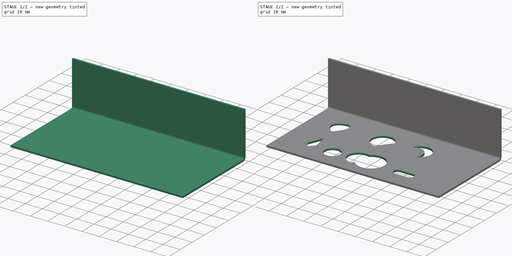
[diagram: build sequence overview — one tinted view per stage of 2, left to right]
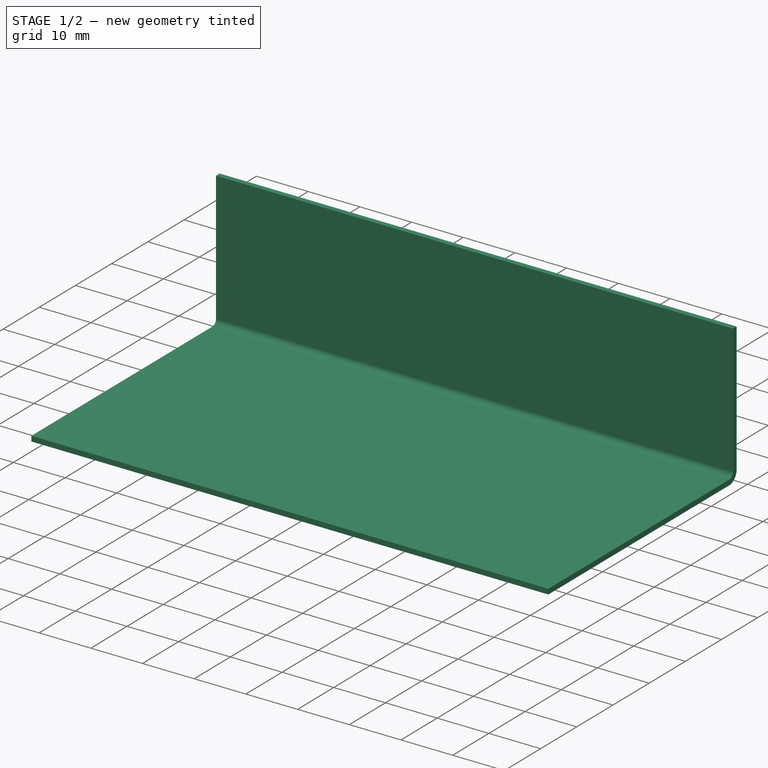
[diagram: stage 1 of 2 — iso view after this stage's code; geometry added in this stage tinted green]
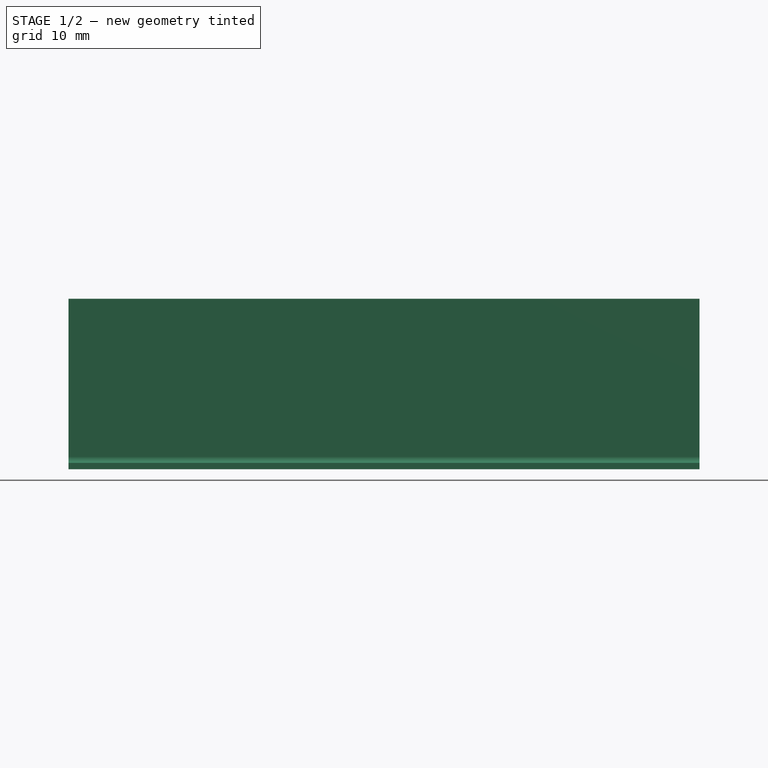
[diagram: stage 1 of 2 — front view after this stage's code; geometry added in this stage tinted green]
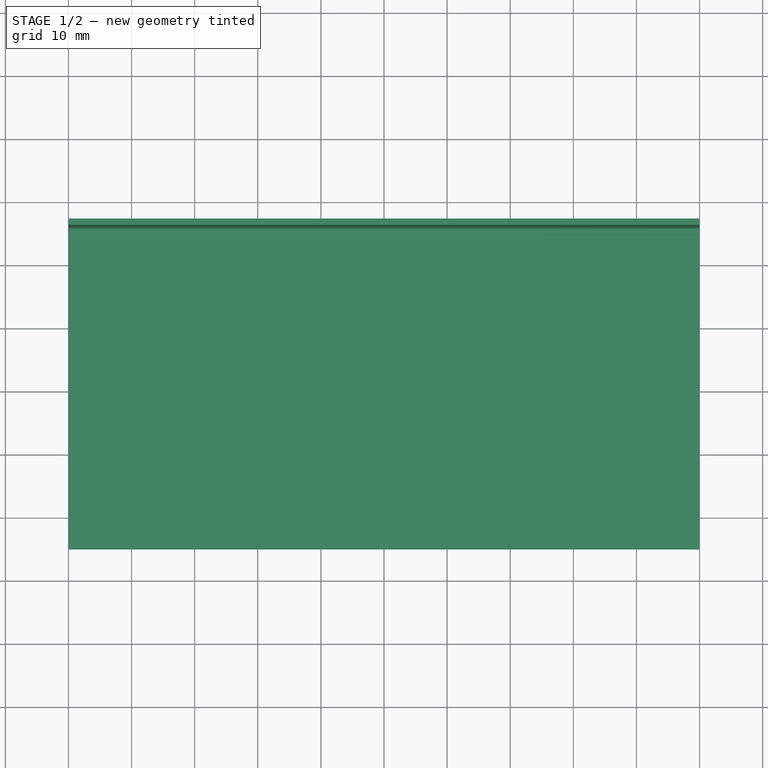
[diagram: stage 1 of 2 — top view after this stage's code; geometry added in this stage tinted green]
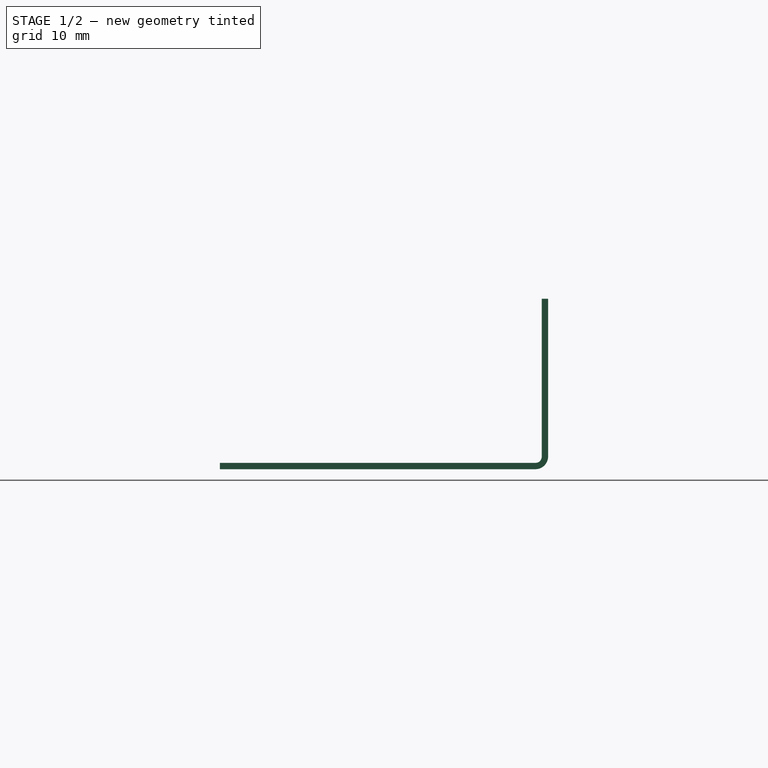
[diagram: stage 1 of 2 — right view after this stage's code; geometry added in this stage tinted green]
FCSTD DOCUMENT  (FreeCAD 0.19R24276 (Git))
Label: SheetMeta_2_48_Arc_Bug
License: All rights reserved
LicenseURL: http://en.wikipedia.org/wiki/All_rights_reserved
objects: Sketcher::SketchObject×2, PartDesign::Pad×1, PartDesign::FeaturePython×1, PartDesign::Pocket×1, PartDesign::Body×1
note: 8 computed .brp shape members not serialized (recipe doc carries the construction recipe); baked Part::Feature solids carry a one-line shape summary decoded from their .brp

FEATURE [Sketcher::SketchObject] Sketch
  FullyConstrained = true
  MapMode = 5
  Support = -> [XY_Plane]
  sketch-geometry (4):
    g0: LineSegment StartX=-50 StartY=25 StartZ=0 EndX=50 EndY=25 EndZ=0
    g1: LineSegment StartX=50 StartY=25 StartZ=0 EndX=50 EndY=-25 EndZ=0
    g2: LineSegment StartX=50 StartY=-25 StartZ=0 EndX=-50 EndY=-25 EndZ=0
    g3: LineSegment StartX=-50 StartY=-25 StartZ=0 EndX=-50 EndY=25 EndZ=0
  constraints (11):
    c: Coincident(g0,g1)
    c: Coincident(g1,g2)
    c: Coincident(g2,g3)
    c: Coincident(g3,g0)
    c: Horizontal(g0)
    c: Horizontal(g2)
    c: Vertical(g1)
    c: Vertical(g3)
    c: Symmetric(g2,g0,g-1)
    c: DistanceY(g3,g3) = 50
    c: DistanceX(g0,g0) = 100
FEATURE [PartDesign::Pad] Pad
  Direction = (1,1,1)
  Length = 1
  Length2 = 100
  Profile = -> Sketch
  Type = 0
FEATURE [Sketcher::SketchObject] Sketch001  label="Sketch001_TEST"
  FullyConstrained = false
  MapMode = 5
  Placement = pos=(0,0,0) rot=(1,0,0;3.14159rad)
  sketch-geometry (29):
    g0: ArcOfCircle CenterX=18.1618 CenterY=13.7873 CenterZ=0 NormalX=0 NormalY=0 NormalZ=1 AngleXU=0 Radius=2.13417 StartAngle=1.5708 EndAngle=4.71239
    g1: ArcOfCircle CenterX=25.553 CenterY=13.7873 CenterZ=0 NormalX=0 NormalY=0 NormalZ=1 AngleXU=0 Radius=2.13417 StartAngle=4.71239 EndAngle=7.85398
    g2: LineSegment StartX=18.1618 StartY=11.6532 StartZ=0 EndX=25.553 EndY=11.6532 EndZ=0
    g3: LineSegment StartX=18.1618 StartY=15.9215 StartZ=0 EndX=25.553 EndY=15.9215 EndZ=0
    g4: LineSegment StartX=-33.5771 StartY=14.6832 StartZ=0 EndX=-35.7049 EndY=11.3236 EndZ=0
    g5: LineSegment StartX=-35.7049 StartY=11.3236 StartZ=0 EndX=-32.1212 EndY=2.86841 EndZ=0
    g6: LineSegment StartX=-32.1212 StartY=2.86841 StartZ=0 EndX=-30.5534 EndY=11.5475 EndZ=0
    g7: LineSegment StartX=-30.5534 StartY=11.5475 StartZ=0 EndX=-33.5771 EndY=14.6832 EndZ=0
    g8-g14: Circle x7 (B-spline internal-alignment scaffolding for g15; pole/knot coordinates omitted)
    g15: BSplineCurve PolesCount=7 KnotsCount=5 Degree=3 IsPeriodic=0
    g16-g20: GeomPoint x5 (B-spline internal-alignment scaffolding for g15; pole/knot coordinates omitted)
    g21: ArcOfCircle CenterX=14.0365 CenterY=-11.1347 CenterZ=0 NormalX=0 NormalY=0 NormalZ=1 AngleXU=0 Radius=6 StartAngle=3.39983 EndAngle=7.60737
    g22: Circle CenterX=-19.8584 CenterY=13.3954 CenterZ=0 NormalX=0 NormalY=0 NormalZ=1 AngleXU=0 Radius=4.40294
    g23: ArcOfCircle CenterX=-5.96146 CenterY=11.7155 CenterZ=0 NormalX=0 NormalY=0 NormalZ=1 AngleXU=0 Radius=6.01225 StartAngle=1.5708 EndAngle=5.087
    g24: ArcOfCircle CenterX=1.36344 CenterY=11.7155 CenterZ=0 NormalX=0 NormalY=0 NormalZ=1 AngleXU=0 Radius=7.58768 StartAngle=3.97084 EndAngle=8.8151
    g25: LineSegment StartX=-5.96146 StartY=17.7278 StartZ=0 EndX=-4.85717 EndY=16.0603 EndZ=0
    g26: ArcOfCircle CenterX=11.7084 CenterY=-8.83359 CenterZ=0 NormalX=0 NormalY=0 NormalZ=1 AngleXU=0 Radius=5.17269 StartAngle=3.97628 EndAngle=7.03092
    g27: ArcOfCircle CenterX=-7.25861 CenterY=-10.234 CenterZ=0 NormalX=0 NormalY=0 NormalZ=1 AngleXU=0 Radius=6.12511 StartAngle=1.60412 EndAngle=6.02172
    g28: LineSegment StartX=-7.46267 StartY=-4.1123 StartZ=0 EndX=-1.34169 EndY=-11.8173 EndZ=0
  constraints (26):
    c: Tangent(g0,g3) = 1.5708
    c: Tangent(g0,g2) = -1.5708
    c: Tangent(g2,g1) = -1.5708
    c: Tangent(g3,g1) = 1.5708
    c: Horizontal(g2)
    c: Equal(g0,g1)
    c: Coincident(g4,g5)
    c: Coincident(g5,g6)
    c: Coincident(g6,g7)
    c: Coincident(g7,g4)
    c: Weight(g8) = 1
    c: Equal(g8, g9-g14) x6
    c: Coincident(g14,g8)
    c: InternalAlignment(g8-g14 -> g15) x7
    c: InternalAlignment(g16-g20 -> g15) x5
    c: Radius(g21) = 6
    c: Vertical(g23,g23)
    c: Coincident(g24,g23)
    c: Horizontal(g23,g24)
    c: Coincident(g25,g23)
    c: Coincident(g25,g24)
    c: Distance(g25) = 2
    c: Coincident(g26,g21)
    c: Coincident(g26,g21)
    c: Coincident(g28,g27)
    c: Coincident(g28,g27)
FEATURE [PartDesign::FeaturePython] Bend  # WARN: FeaturePython — macro-defined, semantics opaque (R4)
  AutoMiter = true
  BaseFeature = -> Pad
  BendType = 0
  LengthList = [25]
  ReliefFactor = 0.7
  UseReliefFactor = false
  angle = 90
  baseObject = -> Pad [Face1]
  bendAList = [90]
  extend1 = 0
  extend2 = 0
  gap1 = 0
  gap2 = 0
  invert = false
  kfactor = 0.5
  length = 25
  maxExtendDist = 5
  minGap = 0.1
  minReliefGap = 1
  miterangle1 = 0
  miterangle2 = 0
  offset = 0
  radius = 1
  reliefType = 0
  reliefd = 1
  reliefw = 0.8
  sketchflip = false
  sketchinvert = false
  unfold = false
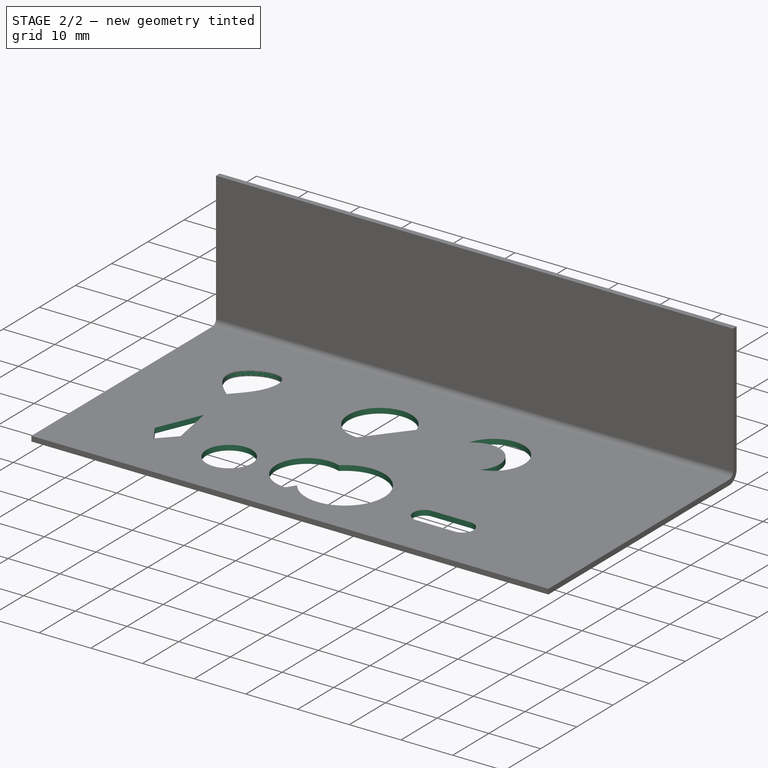
[diagram: stage 2 of 2 — iso view after this stage's code; geometry added in this stage tinted green]
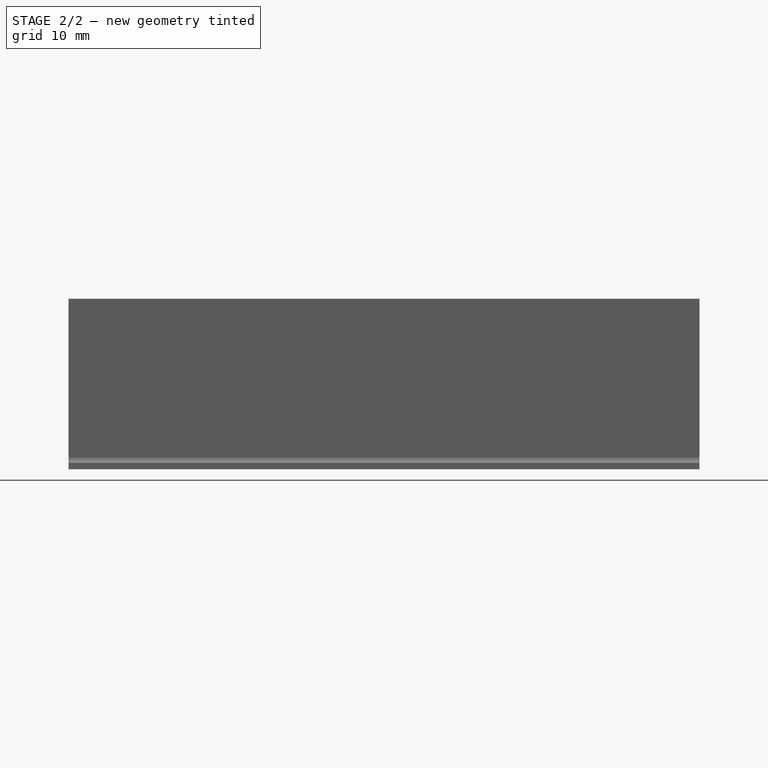
[diagram: stage 2 of 2 — front view after this stage's code; geometry added in this stage tinted green]
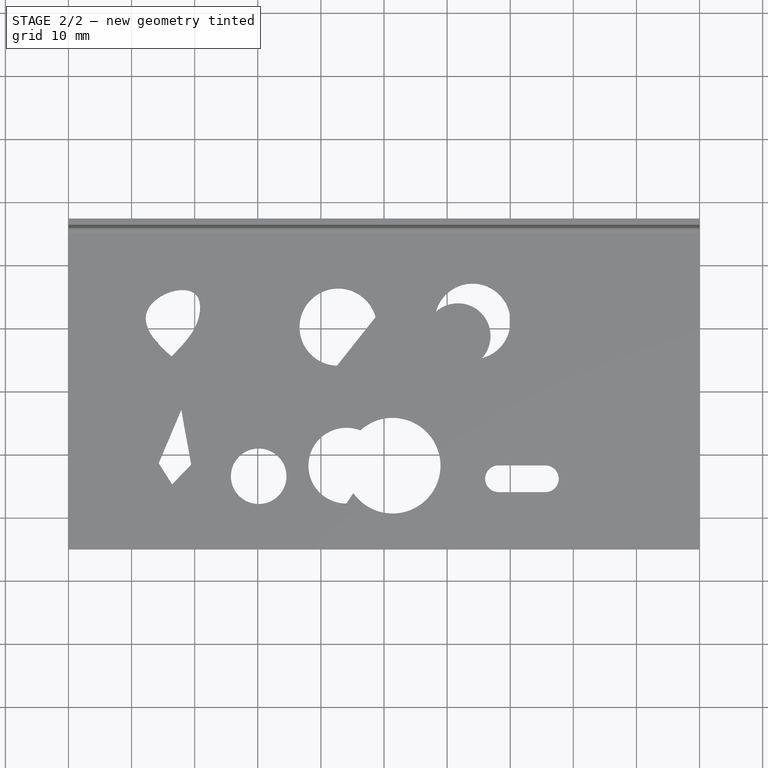
[diagram: stage 2 of 2 — top view after this stage's code; geometry added in this stage tinted green]
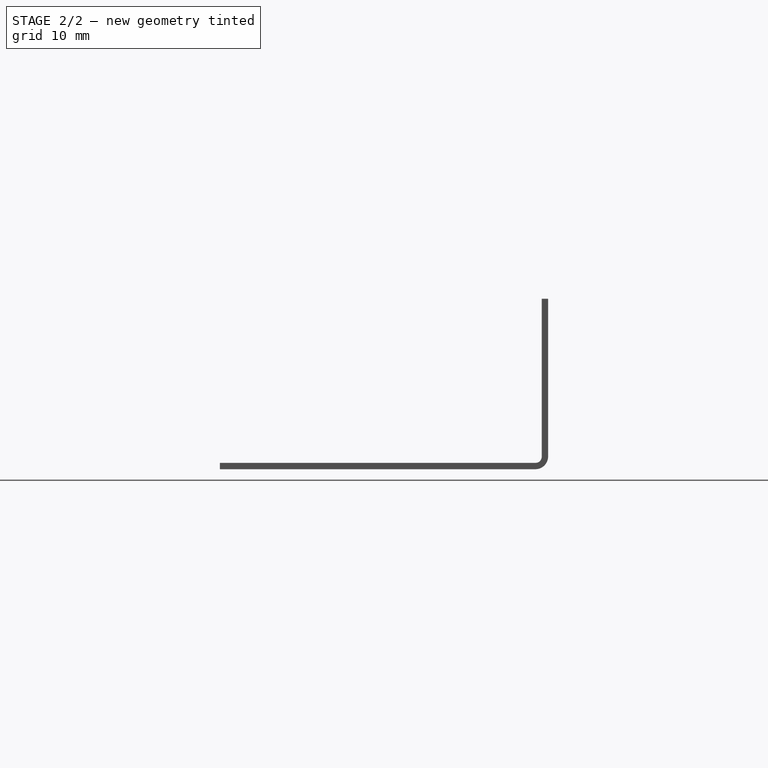
[diagram: stage 2 of 2 — right view after this stage's code; geometry added in this stage tinted green]
FEATURE [PartDesign::Pocket] Pocket
  BaseFeature = -> Bend
  Length = 5
  Length2 = 100
  Profile = -> Sketch001
  Type = 0
FEATURE [PartDesign::Body] Body
  Group = -> [Sketch,Pad,Sketch001,Bend,Pocket]
  Origin = -> Origin
  Tip = -> Pocket
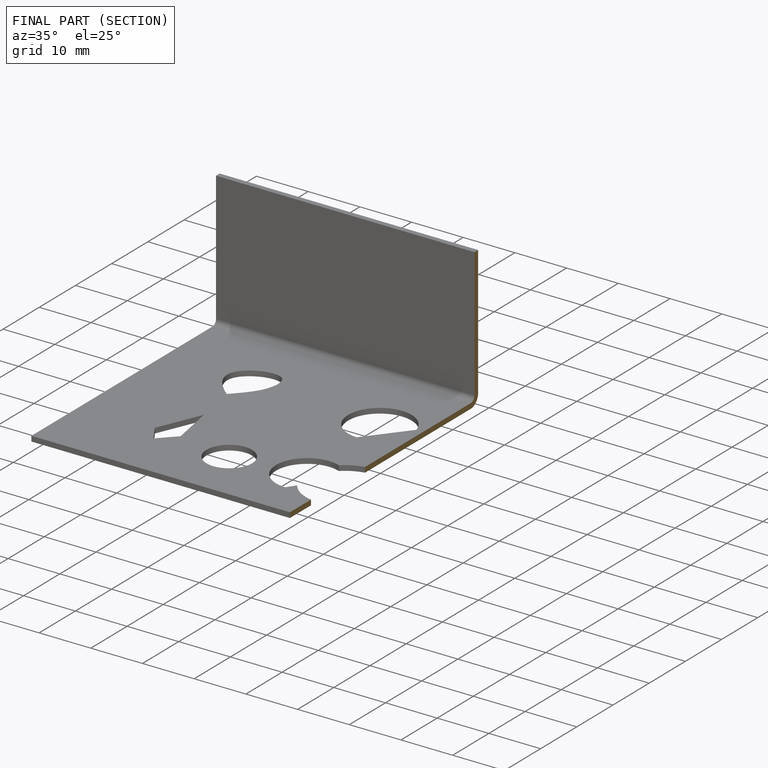
[diagram: finished part — half-section view (interior)]
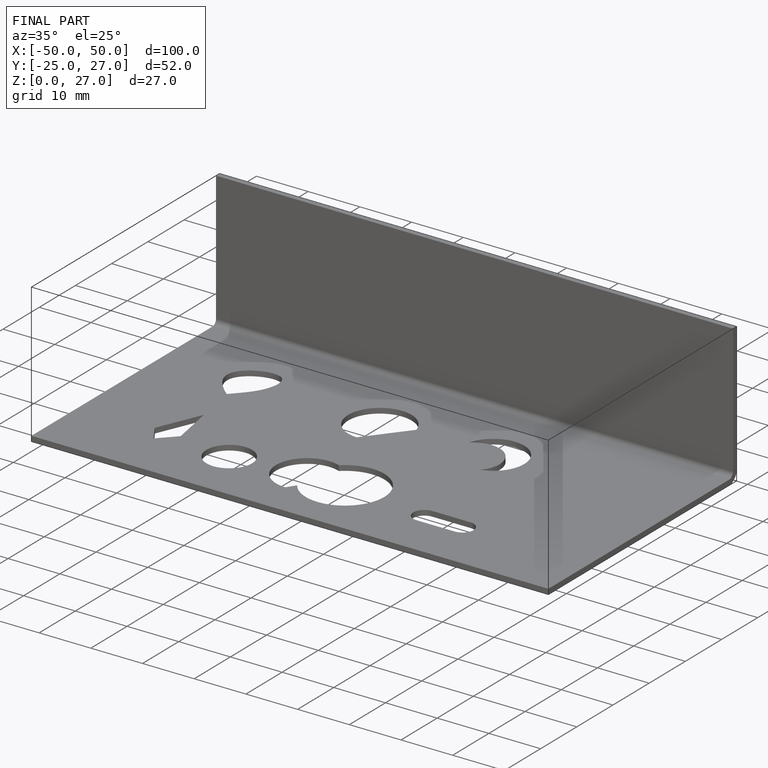
[diagram: finished part — iso view with bounding-box wireframe]
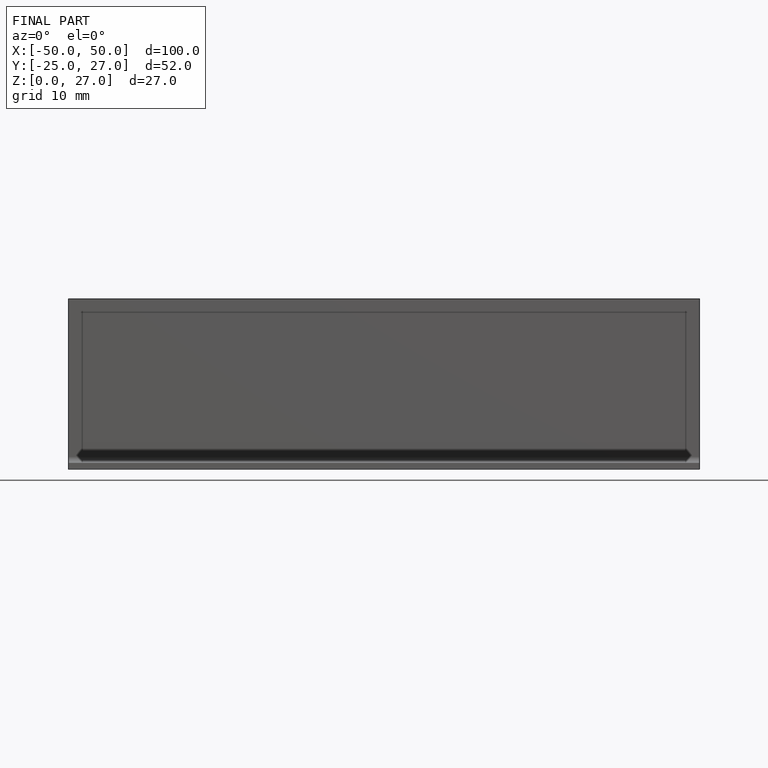
[diagram: finished part — front view with bounding-box wireframe]
